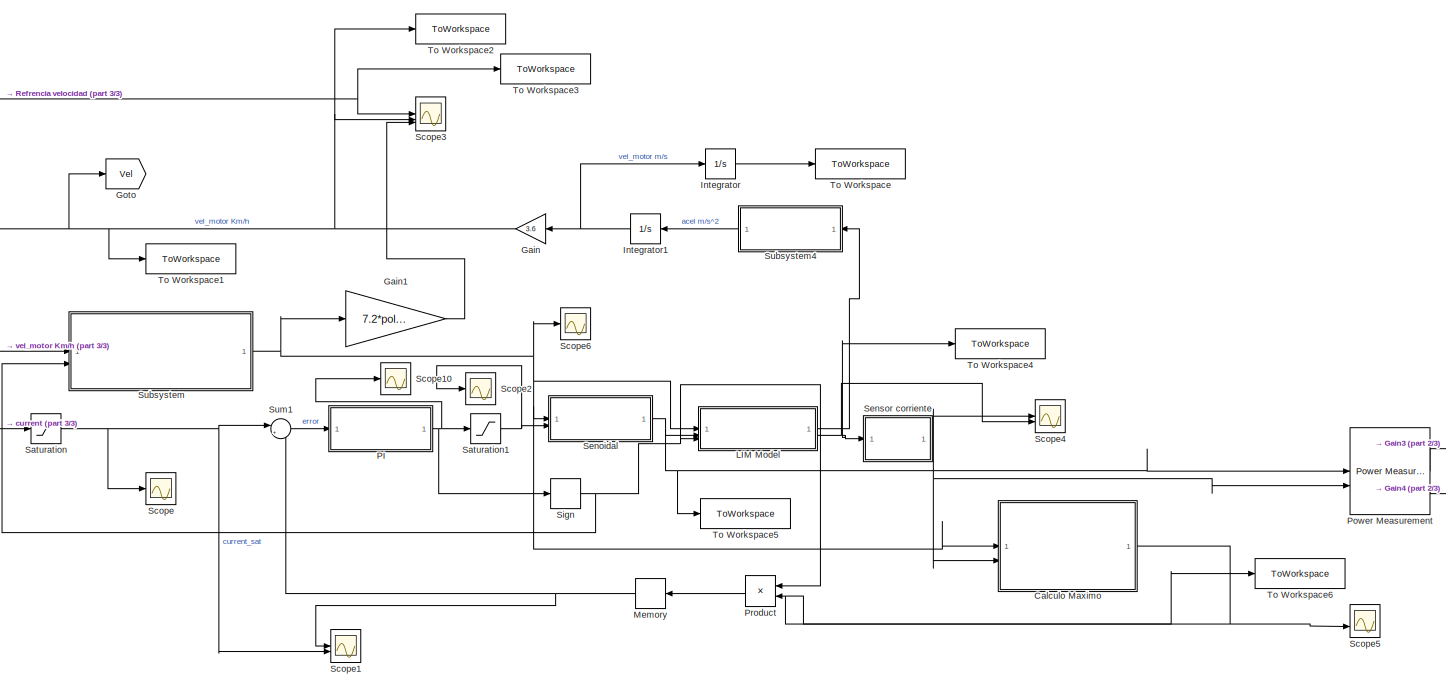
[diagram: root canvas - part 1/3, center side, full height]
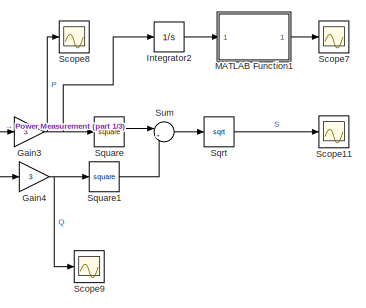
[diagram: root canvas - part 2/3, bottom right region]
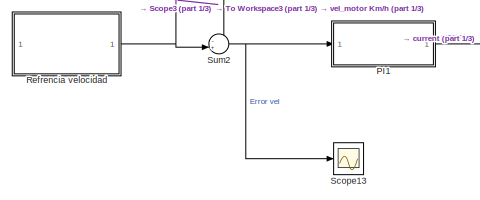
[diagram: root canvas - part 3/3, bottom left region]
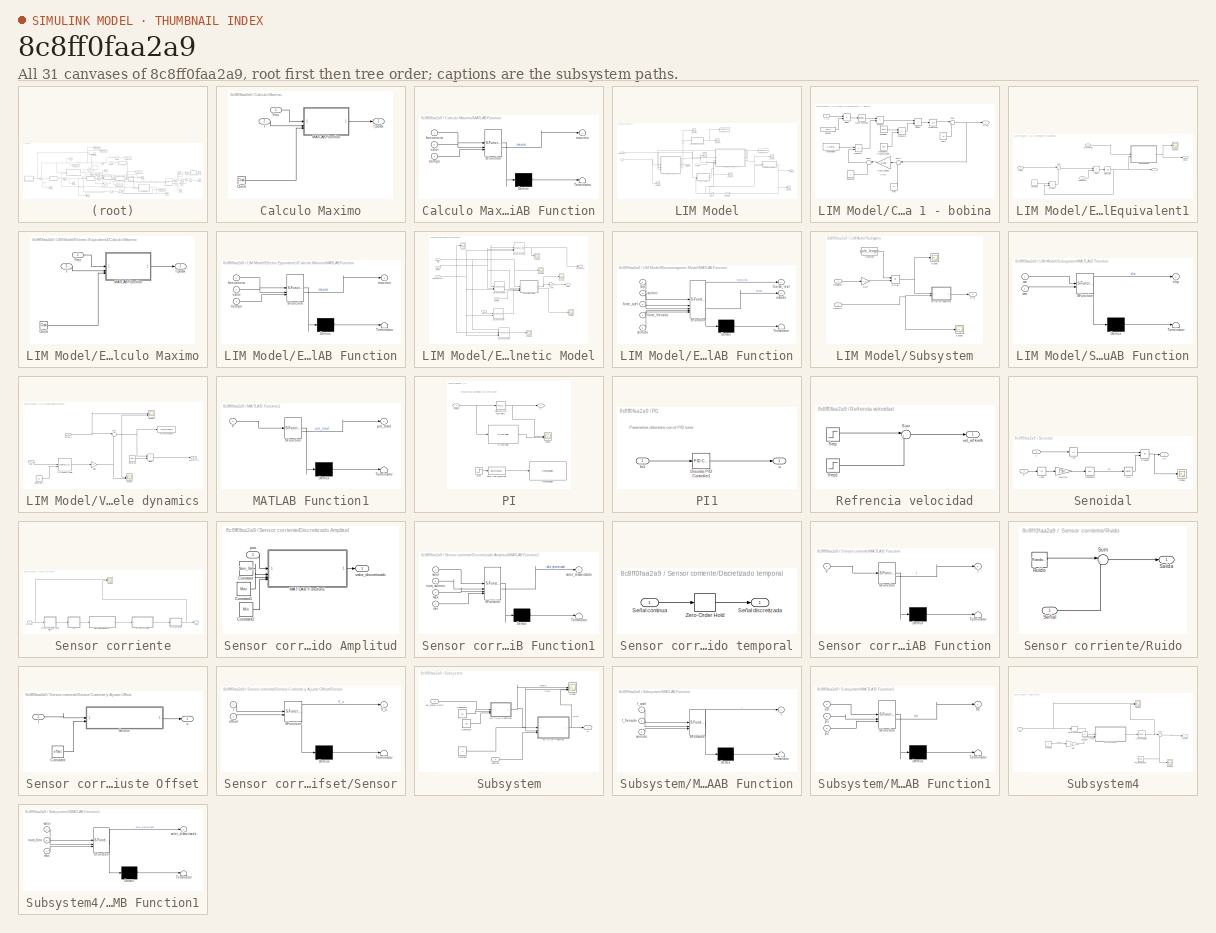
[diagram: thumbnail index - all 31 canvases of the model, root first then tree order]
MODEL slx_8c8ff0faa2a9
KIND model
CONFIG AbsTol = auto
CONFIG EnableMultiTasking = off
CONFIG FixedStep = 0.01
CONFIG MaxStep = 0.00005
CONFIG MinStep = auto
CONFIG RelTol = 1e-3
CONFIG SampleTimeConstraint = Unconstrained
CONFIG SolverName = VariableStepAuto
CONFIG StartTime = 0.0
CONFIG StopTime = 10
BLOCK [SubSystem] Calculo Maximo
BLOCK [Clock] Calculo Maximo/Clock
BLOCK [Inport] Calculo Maximo/Frec
BLOCK [Inport] Calculo Maximo/I
  Port = 2
BLOCK [Outport] Calculo Maximo/I peak
BLOCK [SubSystem] Calculo Maximo/MATLAB Function
  ErrorFcn = Stateflow.Translate.translate
  LibrarySourceBlock = simulink/User-Defined\nFunctions/MATLAB Function
  PermitHierarchicalResolution = ExplicitOnly
  SFBlockType = MATLAB Function
  TreatAsAtomicUnit = on
BLOCK [Demux] Calculo Maximo/MATLAB Function/ Demux 
  Outputs = 1
BLOCK [S-Function] Calculo Maximo/MATLAB Function/ SFunction 
  EnableBusSupport = on
  FunctionName = sf_sfun
  PortCounts = [3 2]
  SFcnIsStateOwnerBlock = off
  SFunctionDeploymentMode = off
  Tag = Stateflow S-Function 12
BLOCK [Terminator] Calculo Maximo/MATLAB Function/ Terminator 
BLOCK [Inport] Calculo Maximo/MATLAB Function/frecuencia
BLOCK [Outport] Calculo Maximo/MATLAB Function/maximo
BLOCK [Inport] Calculo Maximo/MATLAB Function/tiempo
  Port = 3
BLOCK [Inport] Calculo Maximo/MATLAB Function/valor
  Port = 2
BLOCK [Gain] Gain
  Gain = 3.6
  NameLocation = top
BLOCK [Gain] Gain1
  Gain = 7.2*pole_length
BLOCK [Gain] Gain3
  Gain = 3
BLOCK [Gain] Gain4
  Gain = 3
BLOCK [Goto] Goto
  GotoTag = Vel
  TagVisibility = global
BLOCK [Integrator] Integrator
BLOCK [Integrator] Integrator1
  NameLocation = top
BLOCK [Integrator] Integrator2
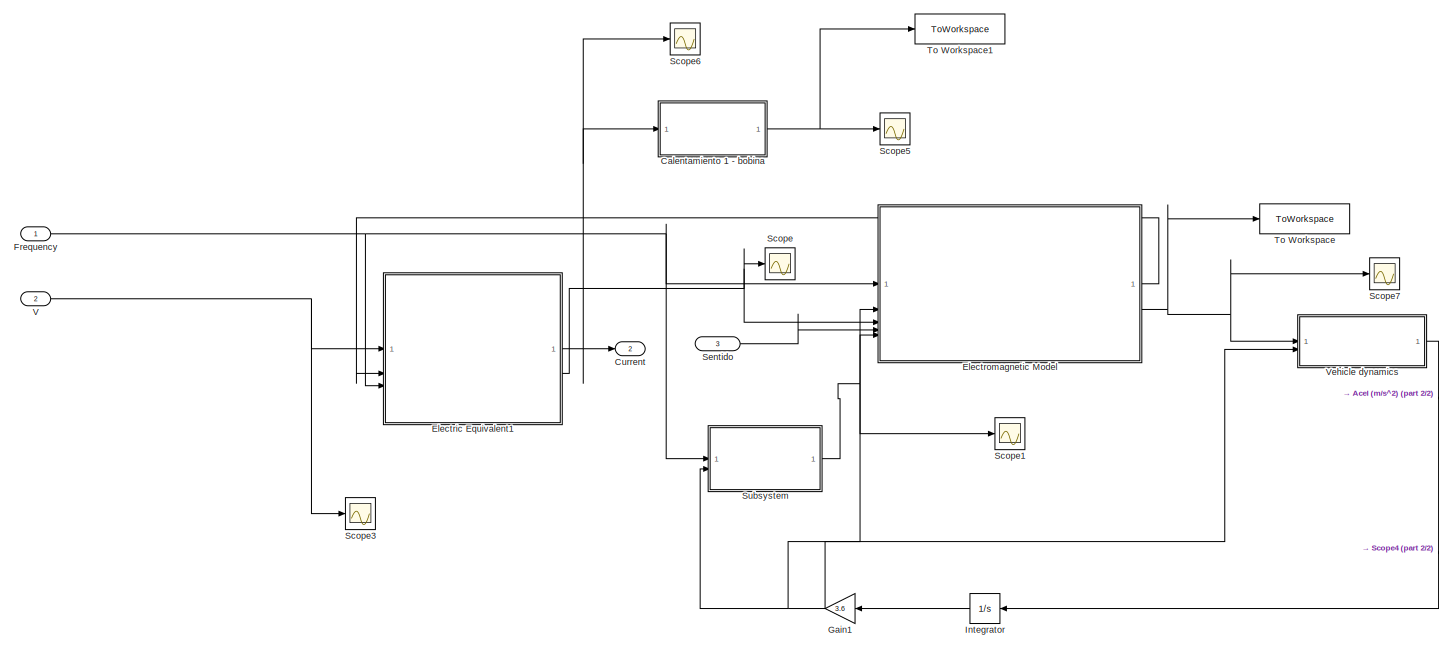
[diagram: LIM Model - part 1/2, most of the canvas]
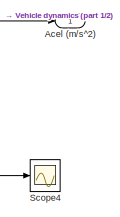
[diagram: LIM Model - part 2/2, bottom right region]
BLOCK [SubSystem] LIM Model
BLOCK [Outport] LIM Model/Acel (m//s^2)
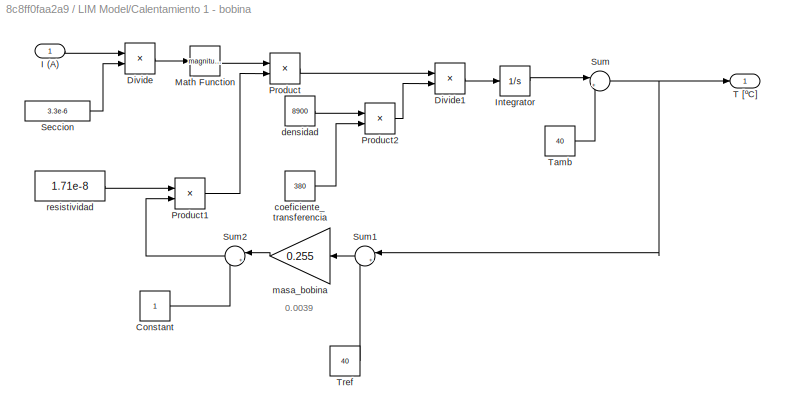
BLOCK [SubSystem] LIM Model/Calentamiento 1 - bobina
BLOCK [Constant] LIM Model/Calentamiento 1 - bobina/Constant
BLOCK [Product] LIM Model/Calentamiento 1 - bobina/Divide
  Inputs = */
BLOCK [Product] LIM Model/Calentamiento 1 - bobina/Divide1
  Inputs = */
BLOCK [Inport] LIM Model/Calentamiento 1 - bobina/I (A)
BLOCK [Integrator] LIM Model/Calentamiento 1 - bobina/Integrator
BLOCK [Math] LIM Model/Calentamiento 1 - bobina/Math Function
  Operator = magnitude^2
BLOCK [Product] LIM Model/Calentamiento 1 - bobina/Product
BLOCK [Product] LIM Model/Calentamiento 1 - bobina/Product1
BLOCK [Product] LIM Model/Calentamiento 1 - bobina/Product2
BLOCK [Constant] LIM Model/Calentamiento 1 - bobina/Seccion
  Value = 3.3e-6
BLOCK [Sum] LIM Model/Calentamiento 1 - bobina/Sum
  Inputs = |++
BLOCK [Sum] LIM Model/Calentamiento 1 - bobina/Sum1
  Inputs = |+-
BLOCK [Sum] LIM Model/Calentamiento 1 - bobina/Sum2
  Inputs = |++
BLOCK [Outport] LIM Model/Calentamiento 1 - bobina/T [ºC]
BLOCK [Constant] LIM Model/Calentamiento 1 - bobina/Tamb
  Value = 40
BLOCK [Constant] LIM Model/Calentamiento 1 - bobina/Tref
  Value = 40
BLOCK [Constant] LIM Model/Calentamiento 1 - bobina/coeficiente_transferencia
  Value = 380
BLOCK [Constant] LIM Model/Calentamiento 1 - bobina/densidad
  Value = 8900
BLOCK [Gain] LIM Model/Calentamiento 1 - bobina/masa_bobina
  Gain = 0.255
BLOCK [Constant] LIM Model/Calentamiento 1 - bobina/resistividad
  Value = 1.71e-8
BLOCK [Outport] LIM Model/Current
  Port = 2
BLOCK [SubSystem] LIM Model/Electric Equivalent1
BLOCK [SubSystem] LIM Model/Electric Equivalent1/Calculo Maximo
BLOCK [Clock] LIM Model/Electric Equivalent1/Calculo Maximo/Clock
BLOCK [Inport] LIM Model/Electric Equivalent1/Calculo Maximo/Frec
BLOCK [Inport] LIM Model/Electric Equivalent1/Calculo Maximo/I
  Port = 2
BLOCK [Outport] LIM Model/Electric Equivalent1/Calculo Maximo/I peak
BLOCK [SubSystem] LIM Model/Electric Equivalent1/Calculo Maximo/MATLAB Function
  ErrorFcn = Stateflow.Translate.translate
  LibrarySourceBlock = simulink/User-Defined\nFunctions/MATLAB Function
  PermitHierarchicalResolution = ExplicitOnly
  SFBlockType = MATLAB Function
  TreatAsAtomicUnit = on
BLOCK [Demux] LIM Model/Electric Equivalent1/Calculo Maximo/MATLAB Function/ Demux 
  Outputs = 1
BLOCK [S-Function] LIM Model/Electric Equivalent1/Calculo Maximo/MATLAB Function/ SFunction 
  EnableBusSupport = on
  FunctionName = sf_sfun
  PortCounts = [3 2]
  SFcnIsStateOwnerBlock = off
  SFunctionDeploymentMode = off
  Tag = Stateflow S-Function 3
BLOCK [Terminator] LIM Model/Electric Equivalent1/Calculo Maximo/MATLAB Function/ Terminator 
BLOCK [Inport] LIM Model/Electric Equivalent1/Calculo Maximo/MATLAB Function/frecuencia
BLOCK [Outport] LIM Model/Electric Equivalent1/Calculo Maximo/MATLAB Function/maximo
BLOCK [Inport] LIM Model/Electric Equivalent1/Calculo Maximo/MATLAB Function/tiempo
  Port = 3
BLOCK [Inport] LIM Model/Electric Equivalent1/Calculo Maximo/MATLAB Function/valor
  Port = 2
BLOCK [Constant] LIM Model/Electric Equivalent1/Constant
  Value = r
BLOCK [Product] LIM Model/Electric Equivalent1/Divide
  Inputs = */
BLOCK [Inport] LIM Model/Electric Equivalent1/Frecuencia
  Port = 3
BLOCK [Outport] LIM Model/Electric Equivalent1/I 
BLOCK [Outport] LIM Model/Electric Equivalent1/I peak
  Port = 2
BLOCK [Inport] LIM Model/Electric Equivalent1/Inductance
  Port = 2
BLOCK [Integrator] LIM Model/Electric Equivalent1/Integrator
BLOCK [Product] LIM Model/Electric Equivalent1/Product
BLOCK [Scope] LIM Model/Electric Equivalent1/Scope1
  Floating = off
  NumInputPorts = 1
  ScopeSpecificationString = Simulink.scopes.TimeScopeBlockCfg('CurrentConfiguration', extmgr.ConfigurationSet(extmgr.Configuration('Core','General UI',true),extmgr.Configuration('Core','Source UI',true),extmgr.Configuration('Sources','WiredSimulink',true,'DataLoggingVariableName','ScopeData9'),extmgr.Configuration('Visuals','Time Domain',true,'SerializedDisplays',{struct('MinYLimReal','-11.61693','MaxYLimReal','104.55239','Y...<+1458ch>
BLOCK [Sum] LIM Model/Electric Equivalent1/Sum
  Inputs = |+-
BLOCK [Inport] LIM Model/Electric Equivalent1/Voltage
BLOCK [SubSystem] LIM Model/Electromagnetic Model
BLOCK [Lookup_n-D] LIM Model/Electromagnetic Model/1-D Lookup Table
  BreakpointsForDimension1 = vel_motor_freno
  BreakpointsForDimension2 = frecuencia_freno
  InputPortMap = u0,u1
  InternalRulePriority = Speed
  RndMeth = Simplest
  Table = FuerzaX_freno
BLOCK [Lookup_n-D] LIM Model/Electromagnetic Model/2-D Lookup Table1
  BreakpointsForDimension1 = slip
  BreakpointsForDimension2 = Ipeak
  BreakpointsForDimension3 = frecuencia
  InputPortMap = u0,u1,u2
  InternalRulePriority = Speed
  InterpMethod = Nearest
  NumberOfTableDimensions = 3
  RndMeth = Simplest
  Table = FuerzaY_acel
BLOCK [Lookup_n-D] LIM Model/Electromagnetic Model/2-D Lookup Table2
  BreakpointsForDimension1 = slip
  BreakpointsForDimension2 = Ipeak
  BreakpointsForDimension3 = frecuencia
  InputPortMap = u0,u1,u2
  InternalRulePriority = Speed
  NumberOfTableDimensions = 3
  RndMeth = Simplest
  Table = FuerzaX_acel
BLOCK [Lookup_n-D] LIM Model/Electromagnetic Model/2-D Lookup Table3
  BreakpointsForDimension1 = Ipeak(2:(end-1))
  BreakpointsForDimension2 = slip
  BreakpointsForDimension3 = frecuencia
  InputPortMap = u0,u1,u2
  InternalRulePriority = Speed
  InterpMethod = Nearest
  NumberOfTableDimensions = 3
  RndMeth = Simplest
  Table = L
BLOCK [Outport] LIM Model/Electromagnetic Model/Force
  Port = 2
BLOCK [Inport] LIM Model/Electromagnetic Model/Frequency (Hz)
BLOCK [Gain] LIM Model/Electromagnetic Model/Gain
  Gain = 1.3
BLOCK [Inport] LIM Model/Electromagnetic Model/I peak
  Port = 3
BLOCK [Outport] LIM Model/Electromagnetic Model/Inductance
BLOCK [SubSystem] LIM Model/Electromagnetic Model/MATLAB Function
  ErrorFcn = Stateflow.Translate.translate
  LibrarySourceBlock = simulink/User-Defined\nFunctions/MATLAB Function
  PermitHierarchicalResolution = ExplicitOnly
  SFBlockType = MATLAB Function
  TreatAsAtomicUnit = on
BLOCK [Demux] LIM Model/Electromagnetic Model/MATLAB Function/ Demux 
  Outputs = 1
BLOCK [S-Function] LIM Model/Electromagnetic Model/MATLAB Function/ SFunction 
  EnableBusSupport = on
  FunctionName = sf_sfun
  PortCounts = [5 3]
  SFcnIsStateOwnerBlock = off
  SFunctionDeploymentMode = off
  Tag = Stateflow S-Function 1
BLOCK [Terminator] LIM Model/Electromagnetic Model/MATLAB Function/ Terminator 
BLOCK [Inport] LIM Model/Electromagnetic Model/MATLAB Function/current
  Port = 2
BLOCK [Outport] LIM Model/Electromagnetic Model/MATLAB Function/estado
  Port = 2
BLOCK [Inport] LIM Model/Electromagnetic Model/MATLAB Function/force_acel
  Port = 3
BLOCK [Inport] LIM Model/Electromagnetic Model/MATLAB Function/force_frenado
  Port = 4
BLOCK [Outport] LIM Model/Electromagnetic Model/MATLAB Function/fuerza_real
BLOCK [Inport] LIM Model/Electromagnetic Model/MATLAB Function/sentido
  Port = 5
BLOCK [Inport] LIM Model/Electromagnetic Model/MATLAB Function/slip
BLOCK [Scope] LIM Model/Electromagnetic Model/Scope
  Floating = off
  NumInputPorts = 1
  ScopeSpecificationString = Simulink.scopes.TimeScopeBlockCfg('CurrentConfiguration', extmgr.ConfigurationSet(extmgr.Configuration('Core','General UI',true),extmgr.Configuration('Core','Source UI',true),extmgr.Configuration('Sources','WiredSimulink',true,'DataLoggingVariableName','ScopeData3'),extmgr.Configuration('Visuals','Time Domain',true,'SerializedDisplays',{struct('MinYLimReal','2.875','MaxYLimReal','4.125','YLabelRea...<+1440ch>
BLOCK [Scope] LIM Model/Electromagnetic Model/Scope1
  Floating = off
  NumInputPorts = 1
  ScopeSpecificationString = Simulink.scopes.TimeScopeBlockCfg('CurrentConfiguration', extmgr.ConfigurationSet(extmgr.Configuration('Core','General UI',true),extmgr.Configuration('Core','Source UI',true),extmgr.Configuration('Sources','WiredSimulink',true,'DataLoggingVariableName','ScopeData4'),extmgr.Configuration('Visuals','Time Domain',true,'SerializedDisplays',{struct('MinYLimReal','-6.96365','MaxYLimReal','2.24234','YLab...<+1407ch>
BLOCK [Scope] LIM Model/Electromagnetic Model/Scope2
  Floating = off
  NumInputPorts = 1
  ScopeSpecificationString = Simulink.scopes.TimeScopeBlockCfg('CurrentConfiguration', extmgr.ConfigurationSet(extmgr.Configuration('Core','General UI',true),extmgr.Configuration('Core','Source UI',true),extmgr.Configuration('Sources','WiredSimulink',true,'DataLoggingVariableName','ScopeData1'),extmgr.Configuration('Visuals','Time Domain',true,'SerializedDisplays',{struct('MinYLimReal','-1.80604','MaxYLimReal','6.00245','YLab...<+1407ch>
BLOCK [Scope] LIM Model/Electromagnetic Model/Scope3
  Floating = off
  NumInputPorts = 1
  ScopeSpecificationString = Simulink.scopes.TimeScopeBlockCfg('CurrentConfiguration', extmgr.ConfigurationSet(extmgr.Configuration('Core','General UI',true),extmgr.Configuration('Core','Source UI',true),extmgr.Configuration('Sources','WiredSimulink',true,'DataLoggingVariableName','ScopeData1'),extmgr.Configuration('Visuals','Time Domain',true,'SerializedDisplays',{struct('MinYLimReal','-2646.34911','MaxYLimReal','1767.7025',...<+1440ch>
BLOCK [Scope] LIM Model/Electromagnetic Model/Scope4
  Floating = off
  NumInputPorts = 1
  ScopeSpecificationString = Simulink.scopes.TimeScopeBlockCfg('CurrentConfiguration', extmgr.ConfigurationSet(extmgr.Configuration('Core','General UI',true),extmgr.Configuration('Core','Source UI',true),extmgr.Configuration('Sources','WiredSimulink',true,'DataLoggingVariableName','ScopeData2'),extmgr.Configuration('Visuals','Time Domain',true,'SerializedDisplays',{struct('MinYLimReal','0.00132','MaxYLimReal','0.00306','YLabe...<+1374ch>
BLOCK [Scope] LIM Model/Electromagnetic Model/Scope6
  Floating = off
  NumInputPorts = 1
  ScopeSpecificationString = Simulink.scopes.TimeScopeBlockCfg('CurrentConfiguration', extmgr.ConfigurationSet(extmgr.Configuration('Core','General UI',true),extmgr.Configuration('Core','Source UI',true),extmgr.Configuration('Sources','WiredSimulink',true,'DataLoggingVariableName','ScopeData2'),extmgr.Configuration('Visuals','Time Domain',true,'SerializedDisplays',{struct('MinYLimReal','868.20501','MaxYLimReal','1079.15466','...<+1481ch>
BLOCK [Inport] LIM Model/Electromagnetic Model/Sentido
  Port = 4
BLOCK [Inport] LIM Model/Electromagnetic Model/Slip
  Port = 2
BLOCK [Inport] LIM Model/Electromagnetic Model/Vel
  Port = 5
BLOCK [Inport] LIM Model/Frequency
BLOCK [Gain] LIM Model/Gain1
  Gain = 3.6
  NameLocation = top
BLOCK [Integrator] LIM Model/Integrator
  NameLocation = top
BLOCK [Scope] LIM Model/Scope
  Floating = off
  NumInputPorts = 1
  ScopeSpecificationString = Simulink.scopes.TimeScopeBlockCfg('CurrentConfiguration', extmgr.ConfigurationSet(extmgr.Configuration('Core','General UI',true),extmgr.Configuration('Core','Source UI',true),extmgr.Configuration('Sources','WiredSimulink',true,'DataLoggingVariableName','ScopeData1'),extmgr.Configuration('Visuals','Time Domain',true,'SerializedDisplays',{struct('MinYLimReal','-12.69143','MaxYLimReal','114.22291','Y...<+1427ch>
BLOCK [Scope] LIM Model/Scope1
  Floating = off
  NumInputPorts = 1
  ScopeSpecificationString = Simulink.scopes.TimeScopeBlockCfg('CurrentConfiguration', extmgr.ConfigurationSet(extmgr.Configuration('Core','General UI',true),extmgr.Configuration('Core','Source UI',true),extmgr.Configuration('Sources','WiredSimulink',true,'DataLoggingVariableName','ScopeData1'),extmgr.Configuration('Visuals','Time Domain',true,'SerializedDisplays',{struct('MinYLimReal','-0.60049','MaxYLimReal','7.73182','YLab...<+1441ch>
BLOCK [Scope] LIM Model/Scope3
  Floating = off
  NumInputPorts = 1
  ScopeSpecificationString = Simulink.scopes.TimeScopeBlockCfg('CurrentConfiguration', extmgr.ConfigurationSet(extmgr.Configuration('Core','General UI',true),extmgr.Configuration('Core','Source UI',true),extmgr.Configuration('Sources','WiredSimulink',true),extmgr.Configuration('Visuals','Time Domain',true,'SerializedDisplays',{struct('MinYLimReal','-72.13544','MaxYLimReal','72.08699','YLabelReal','','MinYLimMag','0.00000','Ma...<+1372ch>
BLOCK [Scope] LIM Model/Scope4
  Floating = off
  NumInputPorts = 1
  ScopeSpecificationString = Simulink.scopes.TimeScopeBlockCfg('CurrentConfiguration', extmgr.ConfigurationSet(extmgr.Configuration('Core','General UI',true),extmgr.Configuration('Core','Source UI',true),extmgr.Configuration('Sources','WiredSimulink',true,'DataLoggingVariableName','ScopeData3'),extmgr.Configuration('Visuals','Time Domain',true,'SerializedDisplays',{struct('MinYLimReal','-8.01071','MaxYLimReal','7.84427','YLab...<+1406ch>
BLOCK [Scope] LIM Model/Scope5
  Floating = off
  NumInputPorts = 1
  ScopeSpecificationString = Simulink.scopes.TimeScopeBlockCfg('CurrentConfiguration', extmgr.ConfigurationSet(extmgr.Configuration('Core','General UI',true),extmgr.Configuration('Core','Source UI',true),extmgr.Configuration('Sources','WiredSimulink',true,'DataLoggingVariableName','ScopeData6'),extmgr.Configuration('Visuals','Time Domain',true,'SerializedDisplays',{struct('MinYLimReal','36.98259','MaxYLimReal','67.1567','YLab...<+1460ch>
BLOCK [Scope] LIM Model/Scope6
  Floating = off
  NumInputPorts = 1
  ScopeSpecificationString = Simulink.scopes.TimeScopeBlockCfg('CurrentConfiguration', extmgr.ConfigurationSet(extmgr.Configuration('Core','General UI',true),extmgr.Configuration('Core','Source UI',true),extmgr.Configuration('Sources','WiredSimulink',true,'DataLoggingVariableName','ScopeData4'),extmgr.Configuration('Visuals','Time Domain',true,'SerializedDisplays',{struct('MinYLimReal','-135.43189','MaxYLimReal','130.86507','...<+1468ch>
BLOCK [Scope] LIM Model/Scope7
  Floating = off
  NumInputPorts = 1
  ScopeSpecificationString = Simulink.scopes.TimeScopeBlockCfg('CurrentConfiguration', extmgr.ConfigurationSet(extmgr.Configuration('Core','General UI',true),extmgr.Configuration('Core','Source UI',true),extmgr.Configuration('Sources','WiredSimulink',true,'DataLoggingVariableName','ScopeData1'),extmgr.Configuration('Visuals','Time Domain',true,'SerializedDisplays',{struct('MinYLimReal','-1453.38554','MaxYLimReal','-360.87797'...<+1512ch>
BLOCK [Inport] LIM Model/Sentido
  Port = 3
BLOCK [SubSystem] LIM Model/Subsystem
BLOCK [Constant] LIM Model/Subsystem/Constant
  Value = pole_length
BLOCK [Product] LIM Model/Subsystem/Divide
  Inputs = **
BLOCK [Inport] LIM Model/Subsystem/Frequency
BLOCK [Gain] LIM Model/Subsystem/Gain
  Gain = 7.2
BLOCK [SubSystem] LIM Model/Subsystem/MATLAB Function
  ErrorFcn = Stateflow.Translate.translate
  PermitHierarchicalResolution = ExplicitOnly
  SFBlockType = MATLAB Function
  TreatAsAtomicUnit = on
BLOCK [Demux] LIM Model/Subsystem/MATLAB Function/ Demux 
  Outputs = 1
BLOCK [S-Function] LIM Model/Subsystem/MATLAB Function/ SFunction 
  EnableBusSupport = on
  FunctionName = sf_sfun
  PortCounts = [2 2]
  SFcnIsStateOwnerBlock = off
  SFunctionDeploymentMode = off
  Tag = Stateflow S-Function 4
BLOCK [Terminator] LIM Model/Subsystem/MATLAB Function/ Terminator 
BLOCK [Outport] LIM Model/Subsystem/MATLAB Function/slip
BLOCK [Inport] LIM Model/Subsystem/MATLAB Function/we
BLOCK [Inport] LIM Model/Subsystem/MATLAB Function/wm
  Port = 2
BLOCK [Scope] LIM Model/Subsystem/Scope
  Floating = off
  NumInputPorts = 1
  ScopeSpecificationString = Simulink.scopes.TimeScopeBlockCfg('CurrentConfiguration', extmgr.ConfigurationSet(extmgr.Configuration('Core','General UI',true),extmgr.Configuration('Core','Source UI',true),extmgr.Configuration('Sources','WiredSimulink',true,'DataLoggingVariableName','ScopeData2'),extmgr.Configuration('Visuals','Time Domain',true,'SerializedDisplays',{struct('MinYLimReal','-10.27468','MaxYLimReal','43.22408','YL...<+1454ch>
BLOCK [Scope] LIM Model/Subsystem/Scope1
  Floating = off
  NumInputPorts = 1
  ScopeSpecificationString = Simulink.scopes.TimeScopeBlockCfg('CurrentConfiguration', extmgr.ConfigurationSet(extmgr.Configuration('Core','General UI',true),extmgr.Configuration('Core','Source UI',true),extmgr.Configuration('Sources','WiredSimulink',true,'DataLoggingVariableName','ScopeData4'),extmgr.Configuration('Visuals','Time Domain',true,'SerializedDisplays',{struct('MinYLimReal','-4.30459','MaxYLimReal','38.74132','YLa...<+1423ch>
BLOCK [Outport] LIM Model/Subsystem/Slip
BLOCK [Inport] LIM Model/Subsystem/Velocity
  Port = 2
BLOCK [ToWorkspace] LIM Model/To Workspace
  FixptAsFi = on
  MaxDataPoints = inf
  SampleTime = -1
  VariableName = fuerzaX
BLOCK [ToWorkspace] LIM Model/To Workspace1
  FixptAsFi = on
  MaxDataPoints = inf
  SampleTime = -1
  VariableName = temp
BLOCK [Inport] LIM Model/V 
  Port = 2
BLOCK [SubSystem] LIM Model/Vehicle dynamics
BLOCK [Lookup_n-D] LIM Model/Vehicle dynamics/1-D Lookup Table
  BreakpointsForDimension1 = vel_drag
  BreakpointsForDimension2 = airgap_drag
  InputPortMap = u0,u1
  InternalRulePriority = Speed
  RndMeth = Simplest
  Table = Force_drag
BLOCK [Outport] LIM Model/Vehicle dynamics/Acel m//s^2
BLOCK [Constant] LIM Model/Vehicle dynamics/Constant
  Value = mass
BLOCK [Constant] LIM Model/Vehicle dynamics/Constant1
  Value = 18
BLOCK [Product] LIM Model/Vehicle dynamics/Divide
  Inputs = */
BLOCK [Inport] LIM Model/Vehicle dynamics/Force_x
BLOCK [Gain] LIM Model/Vehicle dynamics/Gain
  Gain = 4
BLOCK [Scope] LIM Model/Vehicle dynamics/Scope
  Floating = off
  NumInputPorts = 2
  ScopeSpecificationString = Simulink.scopes.TimeScopeBlockCfg('CurrentConfiguration', extmgr.ConfigurationSet(extmgr.Configuration('Core','General UI',true),extmgr.Configuration('Core','Source UI',true),extmgr.Configuration('Sources','WiredSimulink',true,'DataLoggingVariableName','ScopeData11'),extmgr.Configuration('Visuals','Time Domain',true,'SerializedDisplays',{struct('MinYLimReal','-1659.98641','MaxYLimReal','1492.67028...<+1467ch>
BLOCK [Scope] LIM Model/Vehicle dynamics/Scope1
  Floating = off
  NumInputPorts = 2
  ScopeSpecificationString = Simulink.scopes.TimeScopeBlockCfg('CurrentConfiguration', extmgr.ConfigurationSet(extmgr.Configuration('Core','General UI',true),extmgr.Configuration('Core','Source UI',true),extmgr.Configuration('Sources','WiredSimulink',true,'DataLoggingVariableName','ScopeData3'),extmgr.Configuration('Visuals','Time Domain',true,'SerializedDisplays',{struct('MinYLimReal','-1668.7639','MaxYLimReal','1640.81735',...<+1463ch>
BLOCK [Sum] LIM Model/Vehicle dynamics/Sum
  Inputs = |+-
BLOCK [ToWorkspace] LIM Model/Vehicle dynamics/To Workspace
  FixptAsFi = on
  MaxDataPoints = inf
  SampleTime = -1
  VariableName = fuerza_neta
BLOCK [Inport] LIM Model/Vehicle dynamics/Vel
  Port = 2
BLOCK [SubSystem] MATLAB Function1
  ErrorFcn = Stateflow.Translate.translate
  LibrarySourceBlock = simulink/User-Defined\nFunctions/MATLAB Function
  PermitHierarchicalResolution = ExplicitOnly
  SFBlockType = MATLAB Function
  TreatAsAtomicUnit = on
BLOCK [Demux] MATLAB Function1/ Demux 
  Outputs = 1
BLOCK [S-Function] MATLAB Function1/ SFunction 
  EnableBusSupport = on
  FunctionName = sf_sfun
  PortCounts = [1 2]
  SFcnIsStateOwnerBlock = off
  SFunctionDeploymentMode = off
  Tag = Stateflow S-Function 7
BLOCK [Terminator] MATLAB Function1/ Terminator 
BLOCK [Inport] MATLAB Function1/P
BLOCK [Outport] MATLAB Function1/pot_total
BLOCK [Memory] Memory
BLOCK [SubSystem] PI
BLOCK [DataTypeConversion] PI/Data Type Conversion
  OutDataTypeStr = int32
  RndMeth = Floor
  SaturateOnIntegerOverflow = off
BLOCK [Reference] PI/Discrete PID Controller1  REF=slpidlib/PID Controller
  LibrarySourceBlock = simulink/Discrete/Discrete PID Controller
  SourceBlock = slpidlib/PID Controller
  SourceType = PID 1dof
BLOCK [Inport] PI/Inport
BLOCK [Reference] PI/PI_controller  REF=controladores/PI_controller  (lib defined in slx_e54ca8aa457f, slx_fe094b7ecdd4)
  SourceBlock = controladores/PI_controller
  SourceType = CCaller
BLOCK [Scope] PI/Scope
  Floating = off
  NumInputPorts = 3
  ScopeSpecificationString = Simulink.scopes.TimeScopeBlockCfg('CurrentConfiguration', extmgr.ConfigurationSet(extmgr.Configuration('Core','General UI',true),extmgr.Configuration('Core','Source UI',true),extmgr.Configuration('Sources','WiredSimulink',true,'DataLoggingVariableName','ScopeData1'),extmgr.Configuration('Visuals','Time Domain',true,'SerializedDisplays',{struct('MinYLimReal','-4.62203','MaxYLimReal','5.25787','YLab...<+1551ch>
BLOCK [Step] PI/Step
  SampleTime = 0
  Time = 0.00001
BLOCK [Reference] PI/model_initialize  REF=controladores/model_initialize  (lib defined in slx_e54ca8aa457f, slx_fe094b7ecdd4)
  SourceBlock = controladores/model_initialize
  SourceType = CCaller
BLOCK [Outport] PI/u
BLOCK [SubSystem] PI1
BLOCK [Reference] PI1/Discrete PID Controller1  REF=slpidlib/PID Controller
  LibrarySourceBlock = simulink/Discrete/Discrete PID Controller
  SourceBlock = slpidlib/PID Controller
  SourceType = PID 1dof
BLOCK [Inport] PI1/In1
BLOCK [Outport] PI1/u
BLOCK [Reference] Power Measurement  REF=eePowerMeasurement/Power
Measurement
  LibrarySourceBlock = ee_sl_lib/Measurements/Power\nMeasurement
  SourceBlock = eePowerMeasurement/Power\nMeasurement
  SourceType = Power Measurement
BLOCK [Product] Product
  NameLocation = top
BLOCK [SubSystem] Refrencia velocidad
BLOCK [Step] Refrencia velocidad/Step
  After = 35
  SampleTime = 0
  Time = 4
BLOCK [Step] Refrencia velocidad/Step1
  After = -35
  SampleTime = 0
  Time = 5.90
BLOCK [Sum] Refrencia velocidad/Sum
  Inputs = |++
BLOCK [Outport] Refrencia velocidad/vel_ref km//h
BLOCK [Saturate] Saturation
  LowerLimit = -100
  UpperLimit = 100
BLOCK [Saturate] Saturation1
  LowerLimit = -200
  UpperLimit = 200
BLOCK [Scope] Scope
  Floating = off
  NumInputPorts = 1
  ScopeSpecificationString = Simulink.scopes.TimeScopeBlockCfg('CurrentConfiguration', extmgr.ConfigurationSet(extmgr.Configuration('Core','General UI',true),extmgr.Configuration('Core','Source UI',true),extmgr.Configuration('Sources','WiredSimulink',true,'DataLoggingVariableName','ScopeData3'),extmgr.Configuration('Visuals','Time Domain',true,'SerializedDisplays',{struct('MinYLimReal','-125.00000','MaxYLimReal','125.00000','...<+1459ch>
BLOCK [Scope] Scope1
  Floating = off
  NumInputPorts = 2
  ScopeSpecificationString = Simulink.scopes.TimeScopeBlockCfg('CurrentConfiguration', extmgr.ConfigurationSet(extmgr.Configuration('Core','General UI',true),extmgr.Configuration('Core','Source UI',true),extmgr.Configuration('Sources','WiredSimulink',true,'DataLoggingVariableName','ScopeData7'),extmgr.Configuration('Visuals','Time Domain',true,'SerializedDisplays',{struct('MinYLimReal','-128.52853','MaxYLimReal','126.72673','...<+1469ch>
BLOCK [Scope] Scope10
  Floating = off
  NumInputPorts = 1
  ScopeSpecificationString = Simulink.scopes.TimeScopeBlockCfg('CurrentConfiguration', extmgr.ConfigurationSet(extmgr.Configuration('Core','General UI',true),extmgr.Configuration('Core','Source UI',true),extmgr.Configuration('Sources','WiredSimulink',true,'DataLoggingVariableName','ScopeData4'),extmgr.Configuration('Visuals','Time Domain',true,'SerializedDisplays',{struct('MinYLimReal','-73.96453','MaxYLimReal','75.66013','YL...<+1367ch>
BLOCK [Scope] Scope11
  Floating = off
  NumInputPorts = 1
  ScopeSpecificationString = Simulink.scopes.TimeScopeBlockCfg('CurrentConfiguration', extmgr.ConfigurationSet(extmgr.Configuration('Core','General UI',true),extmgr.Configuration('Core','Source UI',true),extmgr.Configuration('Sources','WiredSimulink',true,'DataLoggingVariableName','ScopeData5'),extmgr.Configuration('Visuals','Time Domain',true,'SerializedDisplays',{struct('MinYLimReal','-964.61118','MaxYLimReal','8213.02268',...<+1469ch>
BLOCK [Scope] Scope13
  Floating = off
  NumInputPorts = 1
  ScopeSpecificationString = Simulink.scopes.TimeScopeBlockCfg('CurrentConfiguration', extmgr.ConfigurationSet(extmgr.Configuration('Core','General UI',true),extmgr.Configuration('Core','Source UI',true),extmgr.Configuration('Sources','WiredSimulink',true,'DataLoggingVariableName','ScopeData3'),extmgr.Configuration('Visuals','Time Domain',true,'SerializedDisplays',{struct('MinYLimReal','-43.44581','MaxYLimReal','43.69798','YL...<+1425ch>
BLOCK [Scope] Scope2
  Floating = off
  NumInputPorts = 1
  ScopeSpecificationString = Simulink.scopes.TimeScopeBlockCfg('CurrentConfiguration', extmgr.ConfigurationSet(extmgr.Configuration('Core','General UI',true),extmgr.Configuration('Core','Source UI',true),extmgr.Configuration('Sources','WiredSimulink',true,'DataLoggingVariableName','ScopeData2'),extmgr.Configuration('Visuals','Time Domain',true,'SerializedDisplays',{struct('MinYLimReal','-75.144','MaxYLimReal','72.33283','YLab...<+1443ch>
BLOCK [Scope] Scope3
  Floating = off
  NumInputPorts = 3
  ScopeSpecificationString = Simulink.scopes.TimeScopeBlockCfg('CurrentConfiguration', extmgr.ConfigurationSet(extmgr.Configuration('Core','General UI',true),extmgr.Configuration('Core','Source UI',true),extmgr.Configuration('Sources','WiredSimulink',true,'DataLoggingVariableName','ScopeData1'),extmgr.Configuration('Visuals','Time Domain',true,'SerializedDisplays',{struct('MinYLimReal','-8.25528','MaxYLimReal','49.67351','YLa...<+1574ch>
BLOCK [Scope] Scope4
  Floating = off
  NumInputPorts = 2
  ScopeSpecificationString = Simulink.scopes.TimeScopeBlockCfg('CurrentConfiguration', extmgr.ConfigurationSet(extmgr.Configuration('Core','General UI',true),extmgr.Configuration('Core','Source UI',true),extmgr.Configuration('Sources','WiredSimulink',true,'DataLoggingVariableName','ScopeData1'),extmgr.Configuration('Visuals','Time Domain',true,'SerializedDisplays',{struct('MinYLimReal','-127.04114','MaxYLimReal','127.19336','...<+1514ch>
BLOCK [Scope] Scope5
  Floating = off
  NumInputPorts = 2
  ScopeSpecificationString = Simulink.scopes.TimeScopeBlockCfg('CurrentConfiguration', extmgr.ConfigurationSet(extmgr.Configuration('Core','General UI',true),extmgr.Configuration('Core','Source UI',true),extmgr.Configuration('Sources','WiredSimulink',true,'DataLoggingVariableName','ScopeData3'),extmgr.Configuration('Visuals','Time Domain',true,'SerializedDisplays',{struct('MinYLimReal','-12.6235','MaxYLimReal','113.61152','YL...<+1481ch>
BLOCK [Scope] Scope6
  Floating = off
  NumInputPorts = 1
  ScopeSpecificationString = Simulink.scopes.TimeScopeBlockCfg('CurrentConfiguration', extmgr.ConfigurationSet(extmgr.Configuration('Core','General UI',true),extmgr.Configuration('Core','Source UI',true),extmgr.Configuration('Sources','WiredSimulink',true,'DataLoggingVariableName','ScopeData12'),extmgr.Configuration('Visuals','Time Domain',true,'SerializedDisplays',{struct('MinYLimReal','4.03012','MaxYLimReal','9.75752','YLab...<+1440ch>
BLOCK [Scope] Scope7
  Floating = off
  NumInputPorts = 1
  ScopeSpecificationString = Simulink.scopes.TimeScopeBlockCfg('CurrentConfiguration', extmgr.ConfigurationSet(extmgr.Configuration('Core','General UI',true),extmgr.Configuration('Core','Source UI',true),extmgr.Configuration('Sources','WiredSimulink',true,'DataLoggingVariableName','ScopeData2'),extmgr.Configuration('Visuals','Time Domain',true,'SerializedDisplays',{struct('MinYLimReal','-2190.89926','MaxYLimReal','19718.09336...<+1431ch>
BLOCK [Scope] Scope8
  Floating = off
  NumInputPorts = 1
  ScopeSpecificationString = Simulink.scopes.TimeScopeBlockCfg('CurrentConfiguration', extmgr.ConfigurationSet(extmgr.Configuration('Core','General UI',true),extmgr.Configuration('Core','Source UI',true),extmgr.Configuration('Sources','WiredSimulink',true,'DataLoggingVariableName','ScopeData2'),extmgr.Configuration('Visuals','Time Domain',true,'SerializedDisplays',{struct('MinYLimReal','-911.89466','MaxYLimReal','7958.18285',...<+1913ch>
BLOCK [Scope] Scope9
  Floating = off
  NumInputPorts = 1
  ScopeSpecificationString = Simulink.scopes.TimeScopeBlockCfg('CurrentConfiguration', extmgr.ConfigurationSet(extmgr.Configuration('Core','General UI',true),extmgr.Configuration('Core','Source UI',true),extmgr.Configuration('Sources','WiredSimulink',true,'DataLoggingVariableName','ScopeData3'),extmgr.Configuration('Visuals','Time Domain',true,'SerializedDisplays',{struct('MinYLimReal','-730.1072','MaxYLimReal','6421.28539','...<+1446ch>
BLOCK [SubSystem] Senoidal
BLOCK [Abs] Senoidal/Abs
  SaturateOnIntegerOverflow = off
BLOCK [Abs] Senoidal/Abs1
  SaturateOnIntegerOverflow = off
BLOCK [Inport] Senoidal/F
BLOCK [Integrator] Senoidal/Integrator
  WrapState = on
  WrappedStateLowerValue = 0
  WrappedStateUpperValue = 2*pi
BLOCK [Gain] Senoidal/Multiply
  Gain = 2*pi
BLOCK [Product] Senoidal/Product
BLOCK [Scope] Senoidal/Scope
  Floating = off
  NumInputPorts = 1
  ScopeSpecificationString = Simulink.scopes.TimeScopeBlockCfg('CurrentConfiguration', extmgr.ConfigurationSet(extmgr.Configuration('Core','General UI',true),extmgr.Configuration('Core','Source UI',true),extmgr.Configuration('Sources','WiredSimulink',true,'DataLoggingVariableName','ScopeData5'),extmgr.Configuration('Visuals','Time Domain',true,'SerializedDisplays',{struct('MinYLimReal','-250.00000','MaxYLimReal','249.99999','...<+1399ch>
BLOCK [Trigonometry] Senoidal/Sin
BLOCK [Inport] Senoidal/V
  Port = 2
BLOCK [Outport] Senoidal/Va
BLOCK [SubSystem] Sensor corriente
BLOCK [Inport] Sensor corriente/Current
BLOCK [SubSystem] Sensor corriente/Discretizado Amplitud
BLOCK [Constant] Sensor corriente/Discretizado Amplitud/Constant
  Value = Num_Val
BLOCK [Constant] Sensor corriente/Discretizado Amplitud/Constant1
  Value = Max
BLOCK [Constant] Sensor corriente/Discretizado Amplitud/Constant2
  Value = Min
BLOCK [SubSystem] Sensor corriente/Discretizado Amplitud/MATLAB Function1
  ErrorFcn = Stateflow.Translate.translate
  LibrarySourceBlock = simulink/User-Defined\nFunctions/MATLAB Function
  PermitHierarchicalResolution = ExplicitOnly
  SFBlockType = MATLAB Function
  TreatAsAtomicUnit = on
BLOCK [Demux] Sensor corriente/Discretizado Amplitud/MATLAB Function1/ Demux 
  Outputs = 1
BLOCK [S-Function] Sensor corriente/Discretizado Amplitud/MATLAB Function1/ SFunction 
  EnableBusSupport = on
  FunctionName = sf_sfun
  PortCounts = [4 2]
  SFcnIsStateOwnerBlock = off
  SFunctionDeploymentMode = off
  Tag = Stateflow S-Function 2
BLOCK [Terminator] Sensor corriente/Discretizado Amplitud/MATLAB Function1/ Terminator 
BLOCK [Inport] Sensor corriente/Discretizado Amplitud/MATLAB Function1/max
  Port = 3
BLOCK [Inport] Sensor corriente/Discretizado Amplitud/MATLAB Function1/min
  Port = 4
BLOCK [Inport] Sensor corriente/Discretizado Amplitud/MATLAB Function1/num_valores
  Port = 2
BLOCK [Inport] Sensor corriente/Discretizado Amplitud/MATLAB Function1/valor
BLOCK [Outport] Sensor corriente/Discretizado Amplitud/MATLAB Function1/valor_discreitzado
BLOCK [Inport] Sensor corriente/Discretizado Amplitud/pos
BLOCK [Outport] Sensor corriente/Discretizado Amplitud/valor_discreitzado
BLOCK [SubSystem] Sensor corriente/Discretizado temporal
BLOCK [Inport] Sensor corriente/Discretizado temporal/Señal continua
BLOCK [Outport] Sensor corriente/Discretizado temporal/Señal discretizada
BLOCK [ZeroOrderHold] Sensor corriente/Discretizado temporal/Zero-Order Hold
  SampleTime = Tiempo_Discretizado
BLOCK [SubSystem] Sensor corriente/MATLAB Function
  ErrorFcn = Stateflow.Translate.translate
  LibrarySourceBlock = simulink/User-Defined\nFunctions/MATLAB Function
  PermitHierarchicalResolution = ExplicitOnly
  SFBlockType = MATLAB Function
  TreatAsAtomicUnit = on
BLOCK [Demux] Sensor corriente/MATLAB Function/ Demux 
  Outputs = 1
BLOCK [S-Function] Sensor corriente/MATLAB Function/ SFunction 
  EnableBusSupport = on
  FunctionName = sf_sfun
  PortCounts = [1 2]
  SFcnIsStateOwnerBlock = off
  SFunctionDeploymentMode = off
  Tag = Stateflow S-Function 8
BLOCK [Terminator] Sensor corriente/MATLAB Function/ Terminator 
BLOCK [Outport] Sensor corriente/MATLAB Function/I
BLOCK [Inport] Sensor corriente/MATLAB Function/V
BLOCK [SubSystem] Sensor corriente/Ruido
BLOCK [RandomNumber] Sensor corriente/Ruido/Ruido
  Mean = M
  SampleTime = T
  Seed = 10
  Variance = V
BLOCK [Outport] Sensor corriente/Ruido/Salida
BLOCK [Inport] Sensor corriente/Ruido/Señal
BLOCK [Sum] Sensor corriente/Ruido/Sum
  Inputs = |++
BLOCK [Scope] Sensor corriente/Scope
  Floating = off
  NumInputPorts = 2
  ScopeSpecificationString = Simulink.scopes.TimeScopeBlockCfg('CurrentConfiguration', extmgr.ConfigurationSet(extmgr.Configuration('Core','General UI',true),extmgr.Configuration('Core','Source UI',true),extmgr.Configuration('Sources','WiredSimulink',true,'DataLoggingVariableName','ScopeData2'),extmgr.Configuration('Visuals','Time Domain',true,'SerializedDisplays',{struct('MinYLimReal','-117.8959','MaxYLimReal','109.11113','Y...<+1467ch>
BLOCK [SubSystem] Sensor corriente/Sensor Corriente y Ajuste Offset
BLOCK [Constant] Sensor corriente/Sensor Corriente y Ajuste Offset/Constant
  Value = offset
BLOCK [Inport] Sensor corriente/Sensor Corriente y Ajuste Offset/I
BLOCK [SubSystem] Sensor corriente/Sensor Corriente y Ajuste Offset/Sensor
  ErrorFcn = Stateflow.Translate.translate
  LibrarySourceBlock = simulink/User-Defined\nFunctions/MATLAB Function
  PermitHierarchicalResolution = ExplicitOnly
  SFBlockType = MATLAB Function
  TreatAsAtomicUnit = on
BLOCK [Demux] Sensor corriente/Sensor Corriente y Ajuste Offset/Sensor/ Demux 
  Outputs = 1
BLOCK [S-Function] Sensor corriente/Sensor Corriente y Ajuste Offset/Sensor/ SFunction 
  EnableBusSupport = on
  FunctionName = sf_sfun
  PortCounts = [2 2]
  SFcnIsStateOwnerBlock = off
  SFunctionDeploymentMode = off
  Tag = Stateflow S-Function 10
BLOCK [Terminator] Sensor corriente/Sensor Corriente y Ajuste Offset/Sensor/ Terminator 
BLOCK [Inport] Sensor corriente/Sensor Corriente y Ajuste Offset/Sensor/I
BLOCK [Outport] Sensor corriente/Sensor Corriente y Ajuste Offset/Sensor/V_o
BLOCK [Inport] Sensor corriente/Sensor Corriente y Ajuste Offset/Sensor/offset
  Port = 2
BLOCK [Outport] Sensor corriente/Sensor Corriente y Ajuste Offset/v
BLOCK [Outport] Sensor corriente/valor
BLOCK [Signum] Sign
BLOCK [Sqrt] Sqrt
BLOCK [Math] Square
  Operator = square
BLOCK [Math] Square1
  Operator = square
BLOCK [SubSystem] Subsystem
BLOCK [Constant] Subsystem/Constant
  Value = -3
BLOCK [Constant] Subsystem/Constant1
  Value = p1
BLOCK [Constant] Subsystem/Constant2
  Value = p2
BLOCK [Outport] Subsystem/F
BLOCK [SubSystem] Subsystem/MATLAB Function
  ErrorFcn = Stateflow.Translate.translate
  LibrarySourceBlock = simulink/User-Defined\nFunctions/MATLAB Function
  PermitHierarchicalResolution = ExplicitOnly
  SFBlockType = MATLAB Function
  TreatAsAtomicUnit = on
BLOCK [Demux] Subsystem/MATLAB Function/ Demux 
  Outputs = 1
BLOCK [S-Function] Subsystem/MATLAB Function/ SFunction 
  EnableBusSupport = on
  FunctionName = sf_sfun
  PortCounts = [3 2]
  SFcnIsStateOwnerBlock = off
  SFunctionDeploymentMode = off
  Tag = Stateflow S-Function 6
BLOCK [Terminator] Subsystem/MATLAB Function/ Terminator 
BLOCK [Outport] Subsystem/MATLAB Function/f
BLOCK [Inport] Subsystem/MATLAB Function/f_acel
BLOCK [Inport] Subsystem/MATLAB Function/f_frenado
  Port = 2
BLOCK [Inport] Subsystem/MATLAB Function/sentido
  Port = 3
BLOCK [SubSystem] Subsystem/MATLAB Function1
  ErrorFcn = Stateflow.Translate.translate
  LibrarySourceBlock = simulink/User-Defined\nFunctions/MATLAB Function
  PermitHierarchicalResolution = ExplicitOnly
  SFBlockType = MATLAB Function
  TreatAsAtomicUnit = on
BLOCK [Demux] Subsystem/MATLAB Function1/ Demux 
  Outputs = 1
BLOCK [S-Function] Subsystem/MATLAB Function1/ SFunction 
  EnableBusSupport = on
  FunctionName = sf_sfun
  PortCounts = [3 2]
  SFcnIsStateOwnerBlock = off
  SFunctionDeploymentMode = off
  Tag = Stateflow S-Function 5
BLOCK [Terminator] Subsystem/MATLAB Function1/ Terminator 
BLOCK [Outport] Subsystem/MATLAB Function1/fre
BLOCK [Inport] Subsystem/MATLAB Function1/p1
  Port = 2
BLOCK [Inport] Subsystem/MATLAB Function1/p2
  Port = 3
BLOCK [Inport] Subsystem/MATLAB Function1/vel
BLOCK [Scope] Subsystem/Scope
  Floating = off
  NumInputPorts = 3
  ScopeSpecificationString = Simulink.scopes.TimeScopeBlockCfg('CurrentConfiguration', extmgr.ConfigurationSet(extmgr.Configuration('Core','General UI',true),extmgr.Configuration('Core','Source UI',true),extmgr.Configuration('Sources','WiredSimulink',true,'DataLoggingVariableName','ScopeData4'),extmgr.Configuration('Visuals','Time Domain',true,'SerializedDisplays',{struct('MinYLimReal','-10.0907','MaxYLimReal','60.81626','YLa...<+1533ch>
BLOCK [Inport] Subsystem/sentido
  Port = 2
BLOCK [Inport] Subsystem/vel_motor Km//h
BLOCK [SubSystem] Subsystem4
  NameLocation = top
BLOCK [Inport] Subsystem4/Acel
BLOCK [Outport] Subsystem4/Acel_IMU
BLOCK [Constant] Subsystem4/Constant
  Value = 16
BLOCK [Constant] Subsystem4/Constant1
  Value = 2
BLOCK [Gain] Subsystem4/Gain
  Gain = 9.8
BLOCK [SubSystem] Subsystem4/MATLAB Function1
  ErrorFcn = Stateflow.Translate.translate
  LibrarySourceBlock = simulink/User-Defined\nFunctions/MATLAB Function
  PermitHierarchicalResolution = ExplicitOnly
  SFBlockType = MATLAB Function
  TreatAsAtomicUnit = on
BLOCK [Demux] Subsystem4/MATLAB Function1/ Demux 
  Outputs = 1
BLOCK [S-Function] Subsystem4/MATLAB Function1/ SFunction 
  EnableBusSupport = on
  FunctionName = sf_sfun
  PortCounts = [3 2]
  SFcnIsStateOwnerBlock = off
  SFunctionDeploymentMode = off
  Tag = Stateflow S-Function 9
BLOCK [Terminator] Subsystem4/MATLAB Function1/ Terminator 
BLOCK [Inport] Subsystem4/MATLAB Function1/max
  Port = 3
BLOCK [Inport] Subsystem4/MATLAB Function1/num_bits
  Port = 2
BLOCK [Inport] Subsystem4/MATLAB Function1/valor
BLOCK [Outport] Subsystem4/MATLAB Function1/valor_discreitzado
BLOCK [RandomNumber] Subsystem4/Random Number
  SampleTime = 0.001
  Variance = 0.1
BLOCK [Scope] Subsystem4/Scope
  Floating = off
  NumInputPorts = 2
  ScopeSpecificationString = Simulink.scopes.TimeScopeBlockCfg('CurrentConfiguration', extmgr.ConfigurationSet(extmgr.Configuration('Core','General UI',true),extmgr.Configuration('Core','Source UI',true),extmgr.Configuration('Sources','WiredSimulink',true,'DataLoggingVariableName','ScopeData3'),extmgr.Configuration('Visuals','Time Domain',true,'SerializedDisplays',{struct('MinYLimReal','3.1842','MaxYLimReal','5.49159','YLabel...<+1450ch>
BLOCK [Scope] Subsystem4/Scope1
  Floating = off
  NumInputPorts = 1
  ScopeSpecificationString = Simulink.scopes.TimeScopeBlockCfg('CurrentConfiguration', extmgr.ConfigurationSet(extmgr.Configuration('Core','General UI',true),extmgr.Configuration('Core','Source UI',true),extmgr.Configuration('Sources','WiredSimulink',true,'DataLoggingVariableName','ScopeData1'),extmgr.Configuration('Visuals','Time Domain',true,'SerializedDisplays',{struct('MinYLimReal','-1.2445','MaxYLimReal','1.48075','YLabe...<+1389ch>
BLOCK [Sum] Subsystem4/Sum
  Inputs = |++
BLOCK [TransportDelay] Subsystem4/Transport Delay
  DelayTime = 0.001
BLOCK [ZeroOrderHold] Subsystem4/Zero-Order Hold
  SampleTime = 0.001
BLOCK [Sum] Sum
  Inputs = |++
BLOCK [Sum] Sum1
  Inputs = |+-
BLOCK [Sum] Sum2
  Inputs = -+|
BLOCK [ToWorkspace] To Workspace
  FixptAsFi = on
  MaxDataPoints = inf
  SampleTime = -1
  VariableName = pos
BLOCK [ToWorkspace] To Workspace1
  FixptAsFi = on
  MaxDataPoints = inf
  SampleTime = -1
  VariableName = vel
BLOCK [ToWorkspace] To Workspace2
  FixptAsFi = on
  MaxDataPoints = inf
  SampleTime = -1
  VariableName = vel_motor
BLOCK [ToWorkspace] To Workspace3
  FixptAsFi = on
  MaxDataPoints = inf
  SampleTime = -1
  VariableName = vel_ref
BLOCK [ToWorkspace] To Workspace4
  FixptAsFi = on
  MaxDataPoints = inf
  SampleTime = -1
  VariableName = current
BLOCK [ToWorkspace] To Workspace5
  FixptAsFi = on
  MaxDataPoints = inf
  SampleTime = -1
  SaveFormat = Timeseries
  VariableName = voltageA
BLOCK [ToWorkspace] To Workspace6
  FixptAsFi = on
  MaxDataPoints = inf
  SampleTime = -1
  VariableName = currentpeak
ANNOTATION LIM Model/Calentamiento 1 - bobina: 0.0039
ANNOTATION PI: Parametros obtenidos con el PID tuner
ANNOTATION PI1: Parametros obtenidos con el PID tuner
LINE Calculo Maximo/Clock:1 -> Calculo Maximo/MATLAB Function:3
LINE Calculo Maximo/Frec:1 -> Calculo Maximo/MATLAB Function:1
LINE Calculo Maximo/I:1 -> Calculo Maximo/MATLAB Function:2
LINE Calculo Maximo/MATLAB Function:1 -> Calculo Maximo/I peak:1
NET Calculo Maximo:1 -> Product:2, Scope5:2, To Workspace6:1
LINE Gain1:1 -> Scope3:3
NET Gain3:1 -> Integrator2:1, Scope8:1, Square:1
NET Gain4:1 -> Scope9:1, Square1:1
NET Gain:1 -> Goto:1, Scope3:2, Subsystem:1, Sum2:1, To Workspace1:1, To Workspace2:1
NET Integrator1:1 -> Gain:1, Integrator:1
LINE Integrator2:1 -> MATLAB Function1:1
LINE Integrator:1 -> To Workspace:1
LINE LIM Model/Calentamiento 1 - bobina/Constant:1 -> LIM Model/Calentamiento 1 - bobina/Sum2:2
LINE LIM Model/Calentamiento 1 - bobina/Divide1:1 -> LIM Model/Calentamiento 1 - bobina/Integrator:1
LINE LIM Model/Calentamiento 1 - bobina/Divide:1 -> LIM Model/Calentamiento 1 - bobina/Math Function:1
LINE LIM Model/Calentamiento 1 - bobina/I (A):1 -> LIM Model/Calentamiento 1 - bobina/Divide:1
LINE LIM Model/Calentamiento 1 - bobina/Integrator:1 -> LIM Model/Calentamiento 1 - bobina/Sum:1
LINE LIM Model/Calentamiento 1 - bobina/Math Function:1 -> LIM Model/Calentamiento 1 - bobina/Product:1
LINE LIM Model/Calentamiento 1 - bobina/Product1:1 -> LIM Model/Calentamiento 1 - bobina/Product:2
LINE LIM Model/Calentamiento 1 - bobina/Product2:1 -> LIM Model/Calentamiento 1 - bobina/Divide1:2
LINE LIM Model/Calentamiento 1 - bobina/Product:1 -> LIM Model/Calentamiento 1 - bobina/Divide1:1
LINE LIM Model/Calentamiento 1 - bobina/Seccion:1 -> LIM Model/Calentamiento 1 - bobina/Divide:2
LINE LIM Model/Calentamiento 1 - bobina/Sum1:1 -> LIM Model/Calentamiento 1 - bobina/masa_bobina:1
LINE LIM Model/Calentamiento 1 - bobina/Sum2:1 -> LIM Model/Calentamiento 1 - bobina/Product1:2
NET LIM Model/Calentamiento 1 - bobina/Sum:1 -> LIM Model/Calentamiento 1 - bobina/Sum1:1, LIM Model/Calentamiento 1 - bobina/T [ºC]:1
LINE LIM Model/Calentamiento 1 - bobina/Tamb:1 -> LIM Model/Calentamiento 1 - bobina/Sum:2
LINE LIM Model/Calentamiento 1 - bobina/Tref:1 -> LIM Model/Calentamiento 1 - bobina/Sum1:2
LINE LIM Model/Calentamiento 1 - bobina/coeficiente_transferencia:1 -> LIM Model/Calentamiento 1 - bobina/Product2:2
LINE LIM Model/Calentamiento 1 - bobina/densidad:1 -> LIM Model/Calentamiento 1 - bobina/Product2:1
LINE LIM Model/Calentamiento 1 - bobina/masa_bobina:1 -> LIM Model/Calentamiento 1 - bobina/Sum2:1
LINE LIM Model/Calentamiento 1 - bobina/resistividad:1 -> LIM Model/Calentamiento 1 - bobina/Product1:1
NET LIM Model/Calentamiento 1 - bobina:1 -> LIM Model/Scope5:1, LIM Model/To Workspace1:1
LINE LIM Model/Electric Equivalent1/Calculo Maximo/Clock:1 -> LIM Model/Electric Equivalent1/Calculo Maximo/MATLAB Function:3
LINE LIM Model/Electric Equivalent1/Calculo Maximo/Frec:1 -> LIM Model/Electric Equivalent1/Calculo Maximo/MATLAB Function:1
LINE LIM Model/Electric Equivalent1/Calculo Maximo/I:1 -> LIM Model/Electric Equivalent1/Calculo Maximo/MATLAB Function:2
LINE LIM Model/Electric Equivalent1/Calculo Maximo/MATLAB Function:1 -> LIM Model/Electric Equivalent1/Calculo Maximo/I peak:1
NET LIM Model/Electric Equivalent1/Calculo Maximo:1 -> LIM Model/Electric Equivalent1/I peak:1, LIM Model/Electric Equivalent1/Scope1:1
LINE LIM Model/Electric Equivalent1/Constant:1 -> LIM Model/Electric Equivalent1/Product:1
LINE LIM Model/Electric Equivalent1/Divide:1 -> LIM Model/Electric Equivalent1/Integrator:1
LINE LIM Model/Electric Equivalent1/Frecuencia:1 -> LIM Model/Electric Equivalent1/Calculo Maximo:1
LINE LIM Model/Electric Equivalent1/Inductance:1 -> LIM Model/Electric Equivalent1/Divide:2
NET LIM Model/Electric Equivalent1/Integrator:1 -> LIM Model/Electric Equivalent1/Calculo Maximo:2, LIM Model/Electric Equivalent1/I :1, LIM Model/Electric Equivalent1/Product:2
LINE LIM Model/Electric Equivalent1/Product:1 -> LIM Model/Electric Equivalent1/Sum:2
LINE LIM Model/Electric Equivalent1/Sum:1 -> LIM Model/Electric Equivalent1/Divide:1
LINE LIM Model/Electric Equivalent1/Voltage:1 -> LIM Model/Electric Equivalent1/Sum:1
NET LIM Model/Electric Equivalent1:1 -> LIM Model/Calentamiento 1 - bobina:1, LIM Model/Current:1, LIM Model/Scope6:1
NET LIM Model/Electric Equivalent1:2 -> LIM Model/Electromagnetic Model:3, LIM Model/Scope:1
LINE LIM Model/Electromagnetic Model/1-D Lookup Table:1 -> LIM Model/Electromagnetic Model/MATLAB Function:4
LINE LIM Model/Electromagnetic Model/2-D Lookup Table1:1 -> LIM Model/Electromagnetic Model/Scope3:1
LINE LIM Model/Electromagnetic Model/2-D Lookup Table2:1 -> LIM Model/Electromagnetic Model/MATLAB Function:3
NET LIM Model/Electromagnetic Model/2-D Lookup Table3:1 -> LIM Model/Electromagnetic Model/Inductance:1, LIM Model/Electromagnetic Model/Scope4:1
NET LIM Model/Electromagnetic Model/Frequency (Hz):1 -> LIM Model/Electromagnetic Model/1-D Lookup Table:2, LIM Model/Electromagnetic Model/2-D Lookup Table1:3, LIM Model/Electromagnetic Model/2-D Lookup Table2:3, LIM Model/Electromagnetic Model/2-D Lookup Table3:3
LINE LIM Model/Electromagnetic Model/Gain:1 -> LIM Model/Electromagnetic Model/Force:1
NET LIM Model/Electromagnetic Model/I peak:1 -> LIM Model/Electromagnetic Model/2-D Lookup Table1:2, LIM Model/Electromagnetic Model/2-D Lookup Table2:2, LIM Model/Electromagnetic Model/2-D Lookup Table3:2, LIM Model/Electromagnetic Model/MATLAB Function:2, LIM Model/Electromagnetic Model/Scope1:1
NET LIM Model/Electromagnetic Model/MATLAB Function:1 -> LIM Model/Electromagnetic Model/Gain:1, LIM Model/Electromagnetic Model/Scope6:1
LINE LIM Model/Electromagnetic Model/MATLAB Function:2 -> LIM Model/Electromagnetic Model/Scope:1
LINE LIM Model/Electromagnetic Model/Sentido:1 -> LIM Model/Electromagnetic Model/MATLAB Function:5
NET LIM Model/Electromagnetic Model/Slip:1 -> LIM Model/Electromagnetic Model/2-D Lookup Table1:1, LIM Model/Electromagnetic Model/2-D Lookup Table2:1, LIM Model/Electromagnetic Model/2-D Lookup Table3:1, LIM Model/Electromagnetic Model/MATLAB Function:1, LIM Model/Electromagnetic Model/Scope2:1
LINE LIM Model/Electromagnetic Model/Vel:1 -> LIM Model/Electromagnetic Model/1-D Lookup Table:1
LINE LIM Model/Electromagnetic Model:1 -> LIM Model/Electric Equivalent1:2
NET LIM Model/Electromagnetic Model:2 -> LIM Model/Scope7:1, LIM Model/To Workspace:1, LIM Model/Vehicle dynamics:1
NET LIM Model/Frequency:1 -> LIM Model/Electric Equivalent1:3, LIM Model/Electromagnetic Model:1, LIM Model/Subsystem:1
NET LIM Model/Gain1:1 -> LIM Model/Electromagnetic Model:5, LIM Model/Subsystem:2, LIM Model/Vehicle dynamics:2
LINE LIM Model/Integrator:1 -> LIM Model/Gain1:1
LINE LIM Model/Sentido:1 -> LIM Model/Electromagnetic Model:4
LINE LIM Model/Subsystem/Constant:1 -> LIM Model/Subsystem/Divide:1
NET LIM Model/Subsystem/Divide:1 -> LIM Model/Subsystem/MATLAB Function:1, LIM Model/Subsystem/Scope:1
LINE LIM Model/Subsystem/Frequency:1 -> LIM Model/Subsystem/Gain:1
LINE LIM Model/Subsystem/Gain:1 -> LIM Model/Subsystem/Divide:2
LINE LIM Model/Subsystem/MATLAB Function:1 -> LIM Model/Subsystem/Slip:1
NET LIM Model/Subsystem/Velocity:1 -> LIM Model/Subsystem/MATLAB Function:2, LIM Model/Subsystem/Scope1:1
NET LIM Model/Subsystem:1 -> LIM Model/Electromagnetic Model:2, LIM Model/Scope1:1
NET LIM Model/V :1 -> LIM Model/Electric Equivalent1:1, LIM Model/Scope3:1
LINE LIM Model/Vehicle dynamics/1-D Lookup Table:1 -> LIM Model/Vehicle dynamics/Gain:1
LINE LIM Model/Vehicle dynamics/Constant1:1 -> LIM Model/Vehicle dynamics/1-D Lookup Table:2
LINE LIM Model/Vehicle dynamics/Constant:1 -> LIM Model/Vehicle dynamics/Divide:2
LINE LIM Model/Vehicle dynamics/Divide:1 -> LIM Model/Vehicle dynamics/Acel m//s^2:1
NET LIM Model/Vehicle dynamics/Force_x:1 -> LIM Model/Vehicle dynamics/Scope1:1, LIM Model/Vehicle dynamics/Sum:1
NET LIM Model/Vehicle dynamics/Gain:1 -> LIM Model/Vehicle dynamics/Scope:2, LIM Model/Vehicle dynamics/Sum:2
NET LIM Model/Vehicle dynamics/Sum:1 -> LIM Model/Vehicle dynamics/Divide:1, LIM Model/Vehicle dynamics/Scope1:2, LIM Model/Vehicle dynamics/Scope:1, LIM Model/Vehicle dynamics/To Workspace:1
LINE LIM Model/Vehicle dynamics/Vel:1 -> LIM Model/Vehicle dynamics/1-D Lookup Table:1
NET LIM Model/Vehicle dynamics:1 -> LIM Model/Acel (m//s^2):1, LIM Model/Integrator:1, LIM Model/Scope4:1
LINE LIM Model:1 -> Subsystem4:1
NET LIM Model:2 -> Scope4:2, Sensor corriente:1, To Workspace4:1
LINE MATLAB Function1:1 -> Scope7:1
NET Memory:1 -> Scope1:1, Sum1:2
LINE PI/Data Type Conversion:1 -> PI/model_initialize:1
NET PI/Discrete PID Controller1:1 -> PI/Scope:1, PI/u:1
NET PI/Inport:1 -> PI/Discrete PID Controller1:1, PI/PI_controller:1
LINE PI/PI_controller:1 -> PI/Scope:2
LINE PI/Step:1 -> PI/Data Type Conversion:1
LINE PI1/Discrete PID Controller1:1 -> PI1/u:1
LINE PI1/In1:1 -> PI1/Discrete PID Controller1:1
LINE PI1:1 -> Saturation:1
NET PI:1 -> Saturation1:1, Scope10:1, Sign:1
LINE Power Measurement:1 -> Gain3:1
LINE Power Measurement:2 -> Gain4:1
LINE Product:1 -> Memory:1
LINE Refrencia velocidad/Step1:1 -> Refrencia velocidad/Sum:2
LINE Refrencia velocidad/Step:1 -> Refrencia velocidad/Sum:1
LINE Refrencia velocidad/Sum:1 -> Refrencia velocidad/vel_ref km//h:1
NET Refrencia velocidad:1 -> Scope3:1, Sum2:2, To Workspace3:1
NET Saturation1:1 -> Scope2:1, Senoidal:2
NET Saturation:1 -> Scope1:2, Scope:1, Sum1:1
LINE Senoidal/Abs1:1 -> Senoidal/Multiply:1
LINE Senoidal/Abs:1 -> Senoidal/Product:1
LINE Senoidal/F:1 -> Senoidal/Abs1:1
LINE Senoidal/Integrator:1 -> Senoidal/Sin:1
LINE Senoidal/Multiply:1 -> Senoidal/Integrator:1
NET Senoidal/Product:1 -> Senoidal/Scope:1, Senoidal/Va:1
LINE Senoidal/Sin:1 -> Senoidal/Product:2
LINE Senoidal/V:1 -> Senoidal/Abs:1
NET Senoidal:1 -> LIM Model:2, Power Measurement:1, To Workspace5:1
NET Sensor corriente/Current:1 -> Sensor corriente/Scope:1, Sensor corriente/Sensor Corriente y Ajuste Offset:1
LINE Sensor corriente/Discretizado Amplitud/Constant1:1 -> Sensor corriente/Discretizado Amplitud/MATLAB Function1:3
LINE Sensor corriente/Discretizado Amplitud/Constant2:1 -> Sensor corriente/Discretizado Amplitud/MATLAB Function1:4
LINE Sensor corriente/Discretizado Amplitud/Constant:1 -> Sensor corriente/Discretizado Amplitud/MATLAB Function1:2
LINE Sensor corriente/Discretizado Amplitud/MATLAB Function1:1 -> Sensor corriente/Discretizado Amplitud/valor_discreitzado:1
LINE Sensor corriente/Discretizado Amplitud/pos:1 -> Sensor corriente/Discretizado Amplitud/MATLAB Function1:1
LINE Sensor corriente/Discretizado Amplitud:1 -> Sensor corriente/MATLAB Function:1
LINE Sensor corriente/Discretizado temporal/Señal continua:1 -> Sensor corriente/Discretizado temporal/Zero-Order Hold:1
LINE Sensor corriente/Discretizado temporal/Zero-Order Hold:1 -> Sensor corriente/Discretizado temporal/Señal discretizada:1
LINE Sensor corriente/Discretizado temporal:1 -> Sensor corriente/Discretizado Amplitud:1
NET Sensor corriente/MATLAB Function:1 -> Sensor corriente/Scope:2, Sensor corriente/valor:1
LINE Sensor corriente/Ruido/Ruido:1 -> Sensor corriente/Ruido/Sum:1
LINE Sensor corriente/Ruido/Señal:1 -> Sensor corriente/Ruido/Sum:2
LINE Sensor corriente/Ruido/Sum:1 -> Sensor corriente/Ruido/Salida:1
LINE Sensor corriente/Ruido:1 -> Sensor corriente/Discretizado temporal:1
LINE Sensor corriente/Sensor Corriente y Ajuste Offset/Constant:1 -> Sensor corriente/Sensor Corriente y Ajuste Offset/Sensor:2
LINE Sensor corriente/Sensor Corriente y Ajuste Offset/I:1 -> Sensor corriente/Sensor Corriente y Ajuste Offset/Sensor:1
LINE Sensor corriente/Sensor Corriente y Ajuste Offset/Sensor:1 -> Sensor corriente/Sensor Corriente y Ajuste Offset/v:1
LINE Sensor corriente/Sensor Corriente y Ajuste Offset:1 -> Sensor corriente/Ruido:1
NET Sensor corriente:1 -> Calculo Maximo:2, Power Measurement:2, Scope4:1
NET Sign:1 -> LIM Model:3, Product:1, Subsystem:2
LINE Sqrt:1 -> Scope11:1
LINE Square1:1 -> Sum:2
LINE Square:1 -> Sum:1
LINE Subsystem/Constant1:1 -> Subsystem/MATLAB Function1:2
LINE Subsystem/Constant2:1 -> Subsystem/MATLAB Function1:3
NET Subsystem/Constant:1 -> Subsystem/MATLAB Function:2, Subsystem/Scope:2
NET Subsystem/MATLAB Function1:1 -> Subsystem/MATLAB Function:1, Subsystem/Scope:1
NET Subsystem/MATLAB Function:1 -> Subsystem/F:1, Subsystem/Scope:3
LINE Subsystem/sentido:1 -> Subsystem/MATLAB Function:3
LINE Subsystem/vel_motor Km//h:1 -> Subsystem/MATLAB Function1:1
NET Subsystem4/Acel:1 -> Subsystem4/Scope:1, Subsystem4/Zero-Order Hold:1
LINE Subsystem4/Constant1:1 -> Subsystem4/Gain:1
LINE Subsystem4/Constant:1 -> Subsystem4/MATLAB Function1:2
LINE Subsystem4/Gain:1 -> Subsystem4/MATLAB Function1:3
LINE Subsystem4/MATLAB Function1:1 -> Subsystem4/Transport Delay:1
NET Subsystem4/Random Number:1 -> Subsystem4/Scope1:1, Subsystem4/Sum:2
LINE Subsystem4/Sum:1 -> Subsystem4/Acel_IMU:1
NET Subsystem4/Transport Delay:1 -> Subsystem4/Scope:2, Subsystem4/Sum:1
LINE Subsystem4/Zero-Order Hold:1 -> Subsystem4/MATLAB Function1:1
LINE Subsystem4:1 -> Integrator1:1
NET Subsystem:1 -> Calculo Maximo:1, Gain1:1, LIM Model:1, Scope6:1, Senoidal:1
LINE Sum1:1 -> PI:1
NET Sum2:1 -> PI1:1, Scope13:1
LINE Sum:1 -> Sqrt:1
note: NET lines group one-source signal fan-out (src -> all destinations, sorted); 1:1 wires keep LINE
CHART Calculo Maximo/MATLAB Function states=1 transitions=1
  STATE_LABEL 'eML_blk_kernel()'
  STATE_LABEL 'SCRIPT:\nfunction maximo = fcn(frecuencia,valor,tiempo)\n\n   persistent antiguo_maximo\n    if isempty(antiguo_maximo)\n       antiguo_maximo=0;\n    end\n    persistent t_maximo\n    if isempty(t_maximo)\n       t_maximo=0;\n    end\n\nperiodo=1/abs(frecuencia);\n\n\nif abs(valor)>=antiguo_maximo\n    maximo=abs(valor);\n    antiguo_maximo=abs(valor);\n    t_maximo=tiempo;\nelse\n    maximo=antiguo_maximo;\n    if t...<+124ch>'
CHART LIM Model/Electromagnetic Model/MATLAB Function states=1 transitions=1
  STATE_LABEL 'eML_blk_kernel()'
  STATE_LABEL 'SCRIPT:\nfunction [fuerza_real,estado]= fcn(slip,current,force_acel,force_frenado,sentido)\n\nif sentido>=0\n    force=force_acel;\n    estado=1;\nelse\n    force=force_frenado;\n    estado=2;\nend\n\nif slip == 0 || current<4 && current>-4\n\n    fuerza_real=0;\n    estado=3;\n\nelse\n    fuerza_real=force;\n    estado=4;\nend\n'
CHART Sensor corriente/Discretizado Amplitud/MATLAB Function1 states=1 transitions=1
  STATE_LABEL 'eML_blk_kernel()'
  STATE_LABEL 'SCRIPT:\nfunction valor_discreitzado  = fcn(valor,num_valores,max,min)\n\nif(valor>max)\n    valor_discreitzado=max;\n    return\nend\nif(valor<min)\n    valor_discreitzado=min;\n    return\nend\n\n\nvalor_escalon=(max-min)/(num_valores-1);\n\n\ni=min;\n while(i<max)\n    if(i+valor_escalon/2>valor)\n        valor_discreitzado=i;\n        return\n    end\n    i=i+valor_escalon;\nend\n\n\n\n      valor_discreitzado=max;\nend\n'
CHART LIM Model/Electric Equivalent1/Calculo Maximo/MATLAB Function states=1 transitions=1
  STATE_LABEL 'eML_blk_kernel()'
  STATE_LABEL 'SCRIPT:\nfunction maximo = fcn(frecuencia,valor,tiempo)\n\n   persistent antiguo_maximo\n    if isempty(antiguo_maximo)\n       antiguo_maximo=0;\n    end\n    persistent t_maximo\n    if isempty(t_maximo)\n       t_maximo=0;\n    end\n\nperiodo=1/abs(frecuencia);\n\n\nif abs(valor)>=antiguo_maximo\n    maximo=abs(valor);\n    antiguo_maximo=abs(valor);\n    t_maximo=tiempo;\nelse\n    maximo=antiguo_maximo;\n    if t...<+124ch>'
CHART LIM Model/Subsystem/MATLAB Function states=1 transitions=1
  STATE_LABEL 'eML_blk_kernel()'
  STATE_LABEL 'SCRIPT:\nfunction slip = fcn(we,wm)\n\nslip = (we-wm)/we;\n'
CHART Subsystem/MATLAB Function1 states=1 transitions=1
  STATE_LABEL 'eML_blk_kernel()'
  STATE_LABEL 'SCRIPT:\nfunction fre = fcn(vel,p1,p2)\n\nfre=p2+p1*vel;'
CHART Subsystem/MATLAB Function states=1 transitions=1
  STATE_LABEL 'eML_blk_kernel()'
  STATE_LABEL 'SCRIPT:\nfunction f= fcn(f_acel,f_frenado,sentido)\n\nif sentido>=0\n    f=f_acel;\n\nelse\n    f=f_frenado;\n\nend\n\n\n\n'
CHART MATLAB Function1 states=1 transitions=1
  STATE_LABEL 'eML_blk_kernel()'
  STATE_LABEL 'SCRIPT:\nfunction pot_total = efecto_total(P)\n\npot_total=0;\nfor k=1:max(size(P))\n    pot_total=pot_total+P(k);\nend'
CHART Sensor corriente/MATLAB Function states=1 transitions=1
  STATE_LABEL 'eML_blk_kernel()'
  STATE_LABEL 'SCRIPT:\nfunction I = fcn(V)\n\nI=(V-2.5)/0.005;\n'
CHART Subsystem4/MATLAB Function1 states=1 transitions=1
  STATE_LABEL 'eML_blk_kernel()'
  STATE_LABEL 'SCRIPT:\nfunction valor_discreitzado  = fcn(valor,num_bits,max)\n\nmin=-max;\nnum_valores=2^num_bits;\nif(valor>max)\n    valor_discreitzado=max;\n    return\nend\nif(valor<min)\n    valor_discreitzado=min;\n    return\nend\n\n\nvalor_escalon=(max-min)/(num_valores-1);\n\n\ni=min;\n while(i<max)\n    if(i+valor_escalon/2>valor)\n        valor_discreitzado=i;\n        return\n    end\n    i=i+valor_escalon;\nend\n\n\n\n      v...<+27ch>'
CHART Sensor corriente/Sensor Corriente y Ajuste Offset/Sensor states=1 transitions=1
  STATE_LABEL 'eML_blk_kernel()'
  STATE_LABEL 'SCRIPT:\nfunction V_o = Sensor_L01Z300S05(I,offset)\nVcc=5;\nif(I>300)\n    I=300;\nend\nif(I<-300)\n    I=-300;\nend\nV_ref=Vcc/2;\nV_o=V_ref+0.005*I;\n\nV_o=V_o+offset;\n\nend'
CHART  states=0 transitions=0
CHART  states=0 transitions=0
CHART  states=0 transitions=0
CHART  states=0 transitions=0
CHART  states=0 transitions=0
CHART  states=0 transitions=0
CHART  states=0 transitions=0
CHART  states=0 transitions=0
CHART  states=0 transitions=0
CHART  states=0 transitions=0
CHART  states=0 transitions=0
